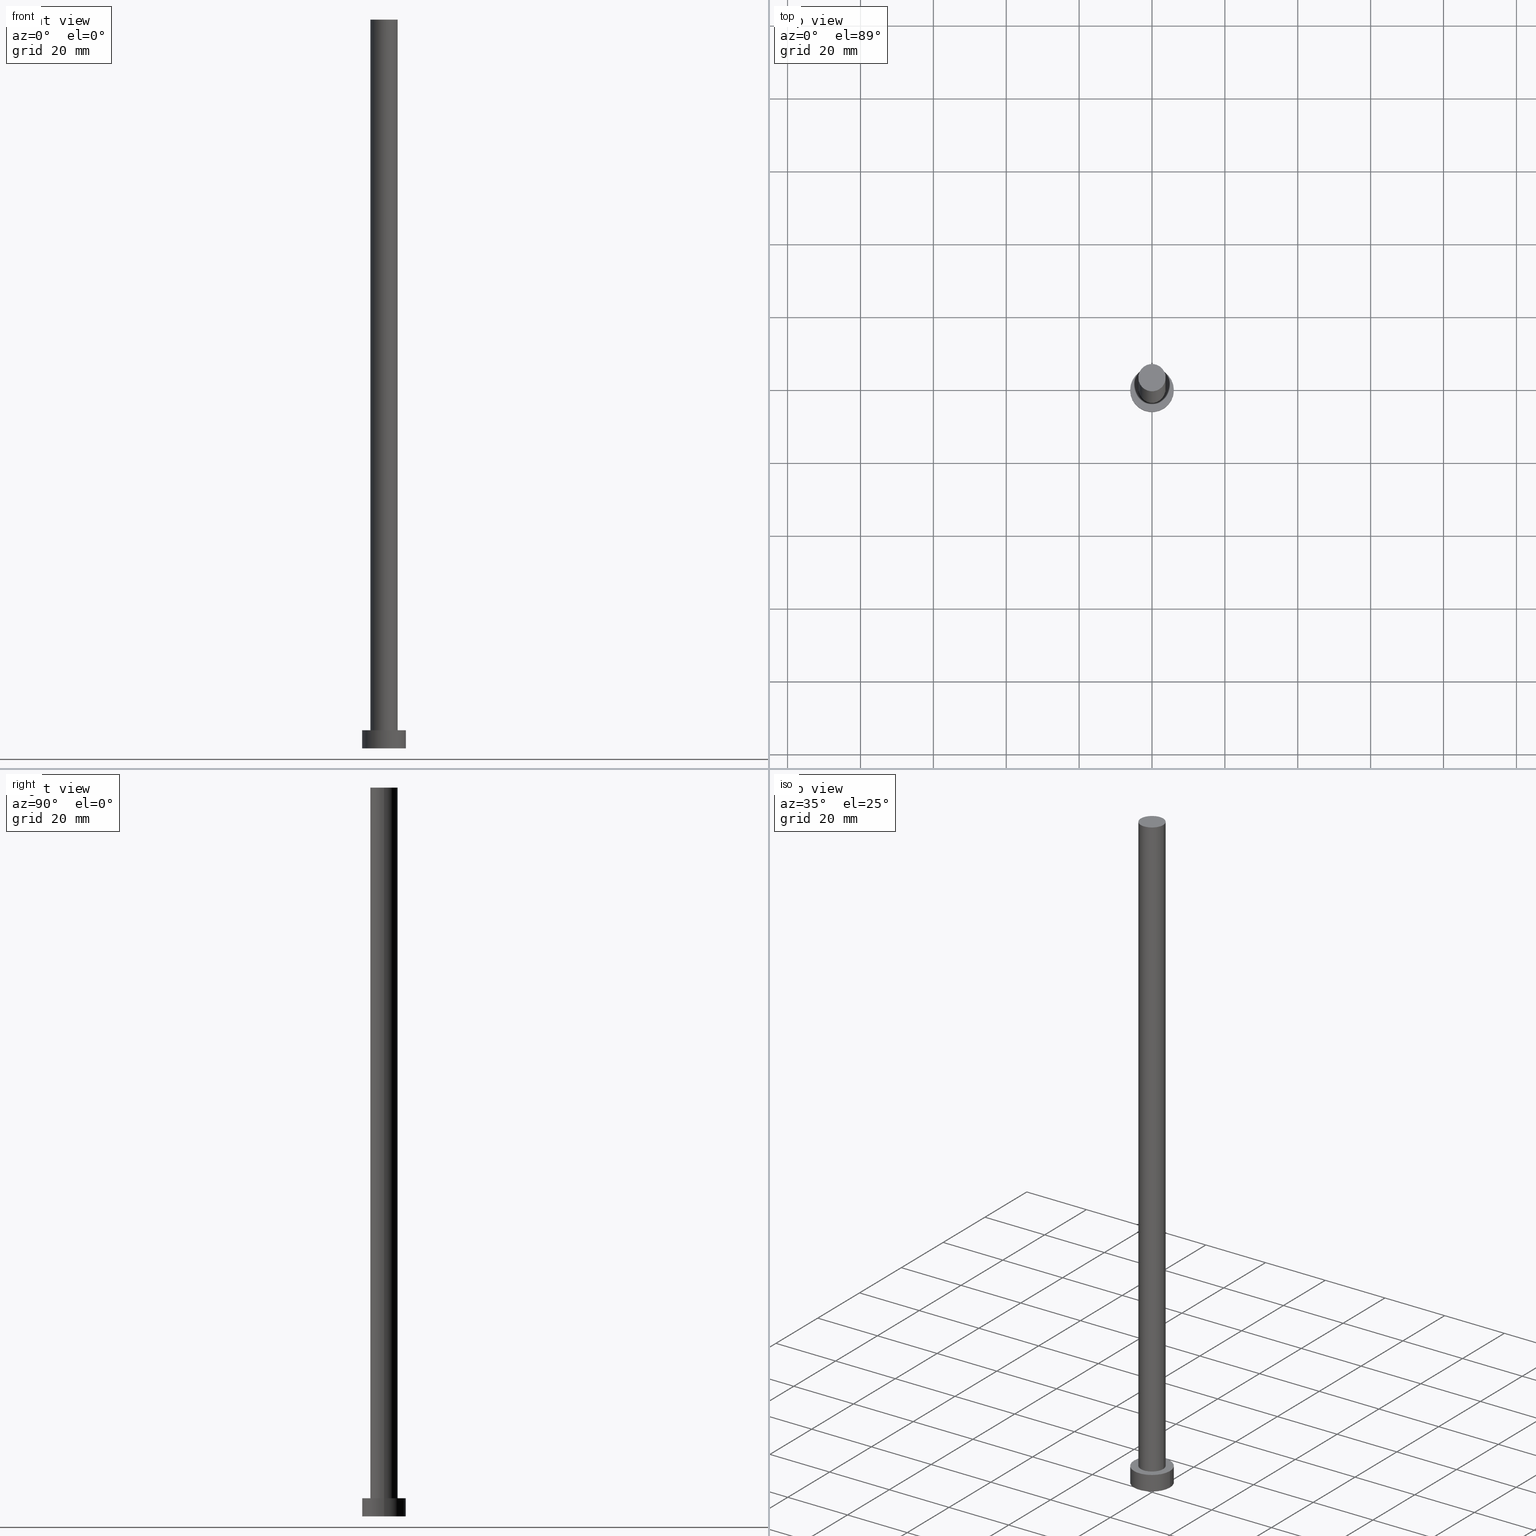
[diagram: canonical four-view strip — front | top / right | iso, engineering-drawing reading convention]
A machine part, canonical four-view strip (front | top / right | iso — engineering-drawing reading convention). The complete STEP part file that produces these views, byte-faithful:
ISO-10303-21;
HEADER;
FILE_DESCRIPTION (( 'STEP AP203' ),
    '1' );
FILE_NAME ('d3c8.STEP',
    '2023-02-13T13:34:40',
    ( '' ),
    ( '' ),
    'SwSTEP 2.0',
    'SolidWorks 2019',
    '' );
FILE_SCHEMA (( 'CONFIG_CONTROL_DESIGN' ));
ENDSEC;

DATA;
#1 = AXIS2_PLACEMENT_3D ( 'NONE', #199, #41, #137 ) ;
#2 = CARTESIAN_POINT ( 'NONE',  ( 6.000000000000000888, 7.347880794884120722E-16, 0.000000000000000000 ) ) ;
#3 = EDGE_CURVE ( 'NONE', #223, #5, #92, .T. ) ;
#4 = CALENDAR_DATE ( 2023, 13, 2 ) ;
#5 = VERTEX_POINT ( 'NONE', #47 ) ;
#6 = PRODUCT_RELATED_PRODUCT_CATEGORY ( 'detail', '', ( #153 ) ) ;
#7 = APPROVAL_DATE_TIME ( #44, #37 ) ;
#8 = DIRECTION ( 'NONE',  ( -0.000000000000000000, -0.000000000000000000, -1.000000000000000000 ) ) ;
#9 = APPROVAL_STATUS ( 'not_yet_approved' ) ;
#10 = ORIENTED_EDGE ( 'NONE', *, *, #175, .T. ) ;
#11 = ORIENTED_EDGE ( 'NONE', *, *, #233, .F. ) ;
#12 = PERSON_AND_ORGANIZATION ( #134, #191 ) ;
#13 = DIRECTION ( 'NONE',  ( 1.000000000000000000, 0.000000000000000000, 0.000000000000000000 ) ) ;
#14 = DIRECTION ( 'NONE',  ( 1.000000000000000000, 0.000000000000000000, 0.000000000000000000 ) ) ;
#15 = CARTESIAN_POINT ( 'NONE',  ( 0.000000000000000000, 0.000000000000000000, 200.0000000000000000 ) ) ;
#16 = CIRCLE ( 'NONE', #49, 3.750000000000000000 ) ;
#17 = CYLINDRICAL_SURFACE ( 'NONE', #108, 3.750000000000000000 ) ;
#18 = AXIS2_PLACEMENT_3D ( 'NONE', #57, #39, #217 ) ;
#19 = DIRECTION ( 'NONE',  ( -1.000000000000000000, 0.000000000000000000, 0.000000000000000000 ) ) ;
#20 = APPROVAL_DATE_TIME ( #24, #118 ) ;
#21 = AXIS2_PLACEMENT_3D ( 'NONE', #224, #125, #142 ) ;
#22 = DIRECTION ( 'NONE',  ( 1.000000000000000000, 0.000000000000000000, 0.000000000000000000 ) ) ;
#23 = EDGE_CURVE ( 'NONE', #59, #77, #97, .T. ) ;
#24 = DATE_AND_TIME ( #155, #221 ) ;
#25 = LINE ( 'NONE', #88, #209 ) ;
#26 = CC_DESIGN_DATE_AND_TIME_ASSIGNMENT ( #186, #115, ( #167 ) ) ;
#27 = CARTESIAN_POINT ( 'NONE',  ( 3.750000000000000000, 4.592425496802573972E-16, 5.000000000000000000 ) ) ;
#28 = DIRECTION ( 'NONE',  ( 0.000000000000000000, 0.000000000000000000, 1.000000000000000000 ) ) ;
#29 = EDGE_CURVE ( 'NONE', #51, #226, #249, .T. ) ;
#30 = DIRECTION ( 'NONE',  ( 1.000000000000000000, 0.000000000000000000, 0.000000000000000000 ) ) ;
#31 = AXIS2_PLACEMENT_3D ( 'NONE', #243, #63, #87 ) ;
#32 = ORIENTED_EDGE ( 'NONE', *, *, #29, .F. ) ;
#33 = LOCAL_TIME ( 14, 34, 40.00000000000000000, #201 ) ;
#34 = CALENDAR_DATE ( 2023, 13, 2 ) ;
#35 = ORIENTED_EDGE ( 'NONE', *, *, #175, .F. ) ;
#36 = APPROVAL_STATUS ( 'not_yet_approved' ) ;
#37 = APPROVAL ( #36, 'NEUR�EN�' ) ;
#38 = UNCERTAINTY_MEASURE_WITH_UNIT (LENGTH_MEASURE( 1.000000000000000082E-05 ), #237, 'distance_accuracy_value', 'NONE');
#39 = DIRECTION ( 'NONE',  ( 0.000000000000000000, 0.000000000000000000, 1.000000000000000000 ) ) ;
#40 = VECTOR ( 'NONE', #109, 1000.000000000000000 ) ;
#41 = DIRECTION ( 'NONE',  ( 0.000000000000000000, 0.000000000000000000, 1.000000000000000000 ) ) ;
#42 = EDGE_CURVE ( 'NONE', #51, #77, #95, .T. ) ;
#43 = ORIENTED_EDGE ( 'NONE', *, *, #198, .F. ) ;
#44 = DATE_AND_TIME ( #34, #181 ) ;
#45 =( GEOMETRIC_REPRESENTATION_CONTEXT ( 3 ) GLOBAL_UNCERTAINTY_ASSIGNED_CONTEXT ( ( #38 ) ) GLOBAL_UNIT_ASSIGNED_CONTEXT ( ( #237, #244, #62 ) ) REPRESENTATION_CONTEXT ( 'NONE', 'WORKASPACE' ) );
#46 = ORIENTED_EDGE ( 'NONE', *, *, #3, .F. ) ;
#47 = CARTESIAN_POINT ( 'NONE',  ( -6.000000000000000888, 0.000000000000000000, 0.000000000000000000 ) ) ;
#48 = EDGE_LOOP ( 'NONE', ( #43, #82, #114, #11 ) ) ;
#49 = AXIS2_PLACEMENT_3D ( 'NONE', #192, #172, #14 ) ;
#50 = ADVANCED_FACE ( 'NONE', ( #78 ), #162, .T. ) ;
#51 = VERTEX_POINT ( 'NONE', #166 ) ;
#52 = MANIFOLD_SOLID_BREP ( 'P�idat vysunut�m3', #179 ) ;
#53 = DESIGN_CONTEXT ( 'detailed design', #101, 'design' ) ;
#54 = VECTOR ( 'NONE', #8, 1000.000000000000000 ) ;
#55 = CC_DESIGN_SECURITY_CLASSIFICATION ( #74, ( #67 ) ) ;
#56 = CARTESIAN_POINT ( 'NONE',  ( 0.000000000000000000, 0.000000000000000000, 5.000000000000000000 ) ) ;
#57 = CARTESIAN_POINT ( 'NONE',  ( 0.000000000000000000, 0.000000000000000000, 0.000000000000000000 ) ) ;
#58 = FACE_OUTER_BOUND ( 'NONE', #61, .T. ) ;
#59 = VERTEX_POINT ( 'NONE', #27 ) ;
#60 = PERSON_AND_ORGANIZATION_ROLE ( 'design_owner' ) ;
#61 = EDGE_LOOP ( 'NONE', ( #145, #183 ) ) ;
#62 =( NAMED_UNIT ( * ) SI_UNIT ( $, .STERADIAN. ) SOLID_ANGLE_UNIT ( ) );
#63 = DIRECTION ( 'NONE',  ( 0.000000000000000000, 0.000000000000000000, 1.000000000000000000 ) ) ;
#64 = EDGE_LOOP ( 'NONE', ( #124, #239 ) ) ;
#65 = CARTESIAN_POINT ( 'NONE',  ( 0.000000000000000000, 0.000000000000000000, 200.0000000000000000 ) ) ;
#66 = APPROVAL_ROLE ( '' ) ;
#67 = PRODUCT_DEFINITION_FORMATION_WITH_SPECIFIED_SOURCE ( 'LIBOVOLN�', '', #153, .NOT_KNOWN. ) ;
#68 = CC_DESIGN_PERSON_AND_ORGANIZATION_ASSIGNMENT ( #184, #240, ( #67 ) ) ;
#69 = CARTESIAN_POINT ( 'NONE',  ( 0.000000000000000000, 0.000000000000000000, 5.000000000000000000 ) ) ;
#70 = PLANE ( 'NONE',  #235 ) ;
#71 = VECTOR ( 'NONE', #234, 1000.000000000000000 ) ;
#72 = LOCAL_TIME ( 14, 34, 40.00000000000000000, #247 ) ;
#73 = CARTESIAN_POINT ( 'NONE',  ( 3.750000000000000000, 4.592425496802573972E-16, 200.0000000000000000 ) ) ;
#74 = SECURITY_CLASSIFICATION ( '', '', #94 ) ;
#75 = CC_DESIGN_PERSON_AND_ORGANIZATION_ASSIGNMENT ( #182, #76, ( #67 ) ) ;
#76 = PERSON_AND_ORGANIZATION_ROLE ( 'creator' ) ;
#77 = VERTEX_POINT ( 'NONE', #86 ) ;
#78 = FACE_OUTER_BOUND ( 'NONE', #64, .T. ) ;
#79 = ADVANCED_FACE ( 'NONE', ( #190 ), #84, .T. ) ;
#80 = APPLICATION_CONTEXT ( 'configuration controlled 3d designs of mechanical parts and assemblies' ) ;
#81 = COORDINATED_UNIVERSAL_TIME_OFFSET ( 1, 0, .AHEAD. ) ;
#82 = ORIENTED_EDGE ( 'NONE', *, *, #144, .T. ) ;
#83 = VERTEX_POINT ( 'NONE', #89 ) ;
#84 = CYLINDRICAL_SURFACE ( 'NONE', #206, 6.000000000000000888 ) ;
#85 = DIRECTION ( 'NONE',  ( -0.000000000000000000, -0.000000000000000000, -1.000000000000000000 ) ) ;
#86 = CARTESIAN_POINT ( 'NONE',  ( -3.750000000000000000, 0.000000000000000000, 5.000000000000000000 ) ) ;
#87 = DIRECTION ( 'NONE',  ( 1.000000000000000000, 0.000000000000000000, -0.000000000000000000 ) ) ;
#88 = CARTESIAN_POINT ( 'NONE',  ( -6.000000000000000888, 0.000000000000000000, 5.000000000000000000 ) ) ;
#89 = CARTESIAN_POINT ( 'NONE',  ( -6.000000000000000888, 0.000000000000000000, 5.000000000000000000 ) ) ;
#90 = EDGE_CURVE ( 'NONE', #77, #59, #16, .T. ) ;
#91 = CC_DESIGN_PERSON_AND_ORGANIZATION_ASSIGNMENT ( #132, #127, ( #74 ) ) ;
#92 = CIRCLE ( 'NONE', #242, 6.000000000000000888 ) ;
#93 = CC_DESIGN_APPROVAL ( #118, ( #74 ) ) ;
#94 = SECURITY_CLASSIFICATION_LEVEL ( 'unclassified' ) ;
#95 = LINE ( 'NONE', #185, #54 ) ;
#96 = DIRECTION ( 'NONE',  ( 0.000000000000000000, 0.000000000000000000, 1.000000000000000000 ) ) ;
#97 = CIRCLE ( 'NONE', #129, 3.750000000000000000 ) ;
#98 = APPLICATION_PROTOCOL_DEFINITION ( 'international standard', 'config_control_design', 1994, #101 ) ;
#99 = ORIENTED_EDGE ( 'NONE', *, *, #90, .F. ) ;
#100 = ORIENTED_EDGE ( 'NONE', *, *, #23, .F. ) ;
#101 = APPLICATION_CONTEXT ( 'configuration controlled 3d designs of mechanical parts and assemblies' ) ;
#102 = DATE_TIME_ROLE ( 'classification_date' ) ;
#103 = CC_DESIGN_APPROVAL ( #37, ( #167 ) ) ;
#104 = DIRECTION ( 'NONE',  ( -0.000000000000000000, -0.000000000000000000, -1.000000000000000000 ) ) ;
#105 = DIRECTION ( 'NONE',  ( -1.000000000000000000, 0.000000000000000000, 0.000000000000000000 ) ) ;
#106 = EDGE_CURVE ( 'NONE', #226, #51, #194, .T. ) ;
#107 = PRODUCT_DEFINITION_SHAPE ( 'NONE', 'NONE',  #167 ) ;
#108 = AXIS2_PLACEMENT_3D ( 'NONE', #112, #231, #105 ) ;
#109 = DIRECTION ( 'NONE',  ( -0.000000000000000000, -0.000000000000000000, -1.000000000000000000 ) ) ;
#110 = CC_DESIGN_APPROVAL ( #158, ( #67 ) ) ;
#111 = SHAPE_DEFINITION_REPRESENTATION ( #107, #250 ) ;
#112 = CARTESIAN_POINT ( 'NONE',  ( 0.000000000000000000, 0.000000000000000000, 200.0000000000000000 ) ) ;
#113 = EDGE_CURVE ( 'NONE', #226, #59, #148, .T. ) ;
#114 = ORIENTED_EDGE ( 'NONE', *, *, #3, .T. ) ;
#115 = DATE_TIME_ROLE ( 'creation_date' ) ;
#116 = AXIS2_PLACEMENT_3D ( 'NONE', #56, #133, #22 ) ;
#117 = EDGE_LOOP ( 'NONE', ( #245, #219, #141, #10 ) ) ;
#118 = APPROVAL ( #218, 'NEUR�EN�' ) ;
#119 = PERSON_AND_ORGANIZATION_ROLE ( 'creator' ) ;
#120 = ORIENTED_EDGE ( 'NONE', *, *, #113, .T. ) ;
#121 = MECHANICAL_CONTEXT ( 'NONE', #80, 'mechanical' ) ;
#122 = ORIENTED_EDGE ( 'NONE', *, *, #90, .T. ) ;
#123 = APPLICATION_PROTOCOL_DEFINITION ( 'international standard', 'config_control_design', 1994, #80 ) ;
#124 = ORIENTED_EDGE ( 'NONE', *, *, #29, .T. ) ;
#125 = DIRECTION ( 'NONE',  ( 0.000000000000000000, 0.000000000000000000, 1.000000000000000000 ) ) ;
#126 = FACE_OUTER_BOUND ( 'NONE', #165, .T. ) ;
#127 = PERSON_AND_ORGANIZATION_ROLE ( 'classification_officer' ) ;
#128 = CARTESIAN_POINT ( 'NONE',  ( 0.000000000000000000, 0.000000000000000000, 5.000000000000000000 ) ) ;
#129 = AXIS2_PLACEMENT_3D ( 'NONE', #220, #28, #13 ) ;
#130 = CC_DESIGN_PERSON_AND_ORGANIZATION_ASSIGNMENT ( #222, #119, ( #167 ) ) ;
#131 = DIRECTION ( 'NONE',  ( -1.000000000000000000, 0.000000000000000000, 0.000000000000000000 ) ) ;
#132 = PERSON_AND_ORGANIZATION ( #134, #191 ) ;
#133 = DIRECTION ( 'NONE',  ( 0.000000000000000000, 0.000000000000000000, 1.000000000000000000 ) ) ;
#134 = PERSON ( 'NEUR�EN�', 'NEUR�EN�', 'NEUR�EN�', ('NEUR�EN�'), ('NEUR�EN�'), ('NEUR�EN�') ) ;
#135 = DATE_AND_TIME ( #152, #238 ) ;
#136 = AXIS2_PLACEMENT_3D ( 'NONE', #65, #96, #189 ) ;
#137 = DIRECTION ( 'NONE',  ( 1.000000000000000000, 0.000000000000000000, -0.000000000000000000 ) ) ;
#138 = DIRECTION ( 'NONE',  ( 0.000000000000000000, 0.000000000000000000, 1.000000000000000000 ) ) ;
#139 = DIRECTION ( 'NONE',  ( -0.000000000000000000, -0.000000000000000000, -1.000000000000000000 ) ) ;
#140 = ADVANCED_FACE ( 'NONE', ( #214 ), #195, .T. ) ;
#141 = ORIENTED_EDGE ( 'NONE', *, *, #233, .T. ) ;
#142 = DIRECTION ( 'NONE',  ( 1.000000000000000000, 0.000000000000000000, 0.000000000000000000 ) ) ;
#143 = APPROVAL_PERSON_ORGANIZATION ( #187, #37, #163 ) ;
#144 = EDGE_CURVE ( 'NONE', #211, #223, #213, .T. ) ;
#145 = ORIENTED_EDGE ( 'NONE', *, *, #230, .T. ) ;
#146 = ORIENTED_EDGE ( 'NONE', *, *, #113, .F. ) ;
#147 = AXIS2_PLACEMENT_3D ( 'NONE', #254, #169, #215 ) ;
#148 = LINE ( 'NONE', #73, #40 ) ;
#149 = CARTESIAN_POINT ( 'NONE',  ( 0.000000000000000000, 0.000000000000000000, 0.000000000000000000 ) ) ;
#150 = ADVANCED_FACE ( 'NONE', ( #126 ), #168, .T. ) ;
#151 = FACE_OUTER_BOUND ( 'NONE', #225, .T. ) ;
#152 = CALENDAR_DATE ( 2023, 13, 2 ) ;
#153 = PRODUCT ( 'd3c8', 'd3c8', '', ( #121 ) ) ;
#154 = DIRECTION ( 'NONE',  ( -0.000000000000000000, -0.000000000000000000, -1.000000000000000000 ) ) ;
#155 = CALENDAR_DATE ( 2023, 13, 2 ) ;
#156 = AXIS2_PLACEMENT_3D ( 'NONE', #160, #138, #193 ) ;
#157 = DIRECTION ( 'NONE',  ( 1.000000000000000000, 0.000000000000000000, -0.000000000000000000 ) ) ;
#158 = APPROVAL ( #9, 'NEUR�EN�' ) ;
#159 = ADVANCED_FACE ( 'NONE', ( #248 ), #70, .F. ) ;
#160 = CARTESIAN_POINT ( 'NONE',  ( 0.000000000000000000, 0.000000000000000000, 5.000000000000000000 ) ) ;
#161 = ORIENTED_EDGE ( 'NONE', *, *, #42, .T. ) ;
#162 = PLANE ( 'NONE',  #31 ) ;
#163 = APPROVAL_ROLE ( '' ) ;
#164 = EDGE_LOOP ( 'NONE', ( #35, #46 ) ) ;
#165 = EDGE_LOOP ( 'NONE', ( #146, #32, #161, #122 ) ) ;
#166 = CARTESIAN_POINT ( 'NONE',  ( -3.750000000000000000, 0.000000000000000000, 200.0000000000000000 ) ) ;
#167 = PRODUCT_DEFINITION ( 'NEZN�M�', '', #67, #53 ) ;
#168 = CYLINDRICAL_SURFACE ( 'NONE', #208, 3.750000000000000000 ) ;
#169 = DIRECTION ( 'NONE',  ( 0.000000000000000000, 0.000000000000000000, 1.000000000000000000 ) ) ;
#170 = CIRCLE ( 'NONE', #18, 6.000000000000000888 ) ;
#171 = CC_DESIGN_PERSON_AND_ORGANIZATION_ASSIGNMENT ( #210, #60, ( #153 ) ) ;
#172 = DIRECTION ( 'NONE',  ( 0.000000000000000000, 0.000000000000000000, 1.000000000000000000 ) ) ;
#173 = COORDINATED_UNIVERSAL_TIME_OFFSET ( 1, 0, .AHEAD. ) ;
#174 = PERSON_AND_ORGANIZATION ( #134, #191 ) ;
#175 = EDGE_CURVE ( 'NONE', #5, #223, #170, .T. ) ;
#176 = ADVANCED_FACE ( 'NONE', ( #151 ), #17, .T. ) ;
#177 = CARTESIAN_POINT ( 'NONE',  ( 6.000000000000000888, 7.347880794884120722E-16, 5.000000000000000000 ) ) ;
#178 = CARTESIAN_POINT ( 'NONE',  ( 3.750000000000000000, 4.592425496802573972E-16, 200.0000000000000000 ) ) ;
#179 = CLOSED_SHELL ( 'NONE', ( #176, #79, #140, #207, #159, #150, #50 ) ) ;
#180 = PLANE ( 'NONE',  #1 ) ;
#181 = LOCAL_TIME ( 14, 34, 40.00000000000000000, #81 ) ;
#182 = PERSON_AND_ORGANIZATION ( #134, #191 ) ;
#183 = ORIENTED_EDGE ( 'NONE', *, *, #198, .T. ) ;
#184 = PERSON_AND_ORGANIZATION ( #134, #191 ) ;
#185 = CARTESIAN_POINT ( 'NONE',  ( -3.750000000000000000, 0.000000000000000000, 200.0000000000000000 ) ) ;
#186 = DATE_AND_TIME ( #203, #72 ) ;
#187 = PERSON_AND_ORGANIZATION ( #134, #191 ) ;
#188 = EDGE_LOOP ( 'NONE', ( #99, #100 ) ) ;
#189 = DIRECTION ( 'NONE',  ( 1.000000000000000000, 0.000000000000000000, 0.000000000000000000 ) ) ;
#190 = FACE_OUTER_BOUND ( 'NONE', #48, .T. ) ;
#191 = ORGANIZATION ( 'NEUR�EN�', 'NEUR�EN�', '' ) ;
#192 = CARTESIAN_POINT ( 'NONE',  ( 0.000000000000000000, 0.000000000000000000, 5.000000000000000000 ) ) ;
#193 = DIRECTION ( 'NONE',  ( 1.000000000000000000, 0.000000000000000000, 0.000000000000000000 ) ) ;
#194 = CIRCLE ( 'NONE', #147, 3.750000000000000000 ) ;
#195 = CYLINDRICAL_SURFACE ( 'NONE', #252, 6.000000000000000888 ) ;
#196 = APPROVAL_ROLE ( '' ) ;
#197 = FACE_BOUND ( 'NONE', #188, .T. ) ;
#198 = EDGE_CURVE ( 'NONE', #211, #83, #227, .T. ) ;
#199 = CARTESIAN_POINT ( 'NONE',  ( 0.000000000000000000, 0.000000000000000000, 5.000000000000000000 ) ) ;
#200 = ORIENTED_EDGE ( 'NONE', *, *, #106, .F. ) ;
#201 = COORDINATED_UNIVERSAL_TIME_OFFSET ( 1, 0, .AHEAD. ) ;
#202 = CARTESIAN_POINT ( 'NONE',  ( 0.000000000000000000, 0.000000000000000000, 0.000000000000000000 ) ) ;
#203 = CALENDAR_DATE ( 2023, 13, 2 ) ;
#204 = ORIENTED_EDGE ( 'NONE', *, *, #42, .F. ) ;
#205 = CC_DESIGN_DATE_AND_TIME_ASSIGNMENT ( #135, #102, ( #74 ) ) ;
#206 = AXIS2_PLACEMENT_3D ( 'NONE', #69, #104, #232 ) ;
#207 = ADVANCED_FACE ( 'NONE', ( #197, #58 ), #180, .T. ) ;
#208 = AXIS2_PLACEMENT_3D ( 'NONE', #15, #85, #131 ) ;
#209 = VECTOR ( 'NONE', #139, 1000.000000000000000 ) ;
#210 = PERSON_AND_ORGANIZATION ( #134, #191 ) ;
#211 = VERTEX_POINT ( 'NONE', #177 ) ;
#212 = APPROVAL_DATE_TIME ( #229, #158 ) ;
#213 = LINE ( 'NONE', #253, #71 ) ;
#214 = FACE_OUTER_BOUND ( 'NONE', #117, .T. ) ;
#215 = DIRECTION ( 'NONE',  ( 1.000000000000000000, 0.000000000000000000, 0.000000000000000000 ) ) ;
#216 = APPROVAL_PERSON_ORGANIZATION ( #12, #158, #66 ) ;
#217 = DIRECTION ( 'NONE',  ( 1.000000000000000000, 0.000000000000000000, 0.000000000000000000 ) ) ;
#218 = APPROVAL_STATUS ( 'not_yet_approved' ) ;
#219 = ORIENTED_EDGE ( 'NONE', *, *, #230, .F. ) ;
#220 = CARTESIAN_POINT ( 'NONE',  ( 0.000000000000000000, 0.000000000000000000, 5.000000000000000000 ) ) ;
#221 = LOCAL_TIME ( 14, 34, 40.00000000000000000, #255 ) ;
#222 = PERSON_AND_ORGANIZATION ( #134, #191 ) ;
#223 = VERTEX_POINT ( 'NONE', #2 ) ;
#224 = CARTESIAN_POINT ( 'NONE',  ( 0.000000000000000000, 0.000000000000000000, 0.000000000000000000 ) ) ;
#225 = EDGE_LOOP ( 'NONE', ( #200, #120, #241, #204 ) ) ;
#226 = VERTEX_POINT ( 'NONE', #178 ) ;
#227 = CIRCLE ( 'NONE', #116, 6.000000000000000888 ) ;
#228 = CIRCLE ( 'NONE', #156, 6.000000000000000888 ) ;
#229 = DATE_AND_TIME ( #4, #33 ) ;
#230 = EDGE_CURVE ( 'NONE', #83, #211, #228, .T. ) ;
#231 = DIRECTION ( 'NONE',  ( -0.000000000000000000, -0.000000000000000000, -1.000000000000000000 ) ) ;
#232 = DIRECTION ( 'NONE',  ( -1.000000000000000000, 0.000000000000000000, 0.000000000000000000 ) ) ;
#233 = EDGE_CURVE ( 'NONE', #83, #5, #25, .T. ) ;
#234 = DIRECTION ( 'NONE',  ( -0.000000000000000000, -0.000000000000000000, -1.000000000000000000 ) ) ;
#235 = AXIS2_PLACEMENT_3D ( 'NONE', #149, #251, #157 ) ;
#236 = APPROVAL_PERSON_ORGANIZATION ( #174, #118, #196 ) ;
#237 =( LENGTH_UNIT ( ) NAMED_UNIT ( * ) SI_UNIT ( .MILLI., .METRE. ) );
#238 = LOCAL_TIME ( 14, 34, 40.00000000000000000, #173 ) ;
#239 = ORIENTED_EDGE ( 'NONE', *, *, #106, .T. ) ;
#240 = PERSON_AND_ORGANIZATION_ROLE ( 'design_supplier' ) ;
#241 = ORIENTED_EDGE ( 'NONE', *, *, #23, .T. ) ;
#242 = AXIS2_PLACEMENT_3D ( 'NONE', #202, #246, #30 ) ;
#243 = CARTESIAN_POINT ( 'NONE',  ( 0.000000000000000000, 0.000000000000000000, 200.0000000000000000 ) ) ;
#244 =( NAMED_UNIT ( * ) PLANE_ANGLE_UNIT ( ) SI_UNIT ( $, .RADIAN. ) );
#245 = ORIENTED_EDGE ( 'NONE', *, *, #144, .F. ) ;
#246 = DIRECTION ( 'NONE',  ( 0.000000000000000000, 0.000000000000000000, 1.000000000000000000 ) ) ;
#247 = COORDINATED_UNIVERSAL_TIME_OFFSET ( 1, 0, .AHEAD. ) ;
#248 = FACE_OUTER_BOUND ( 'NONE', #164, .T. ) ;
#249 = CIRCLE ( 'NONE', #136, 3.750000000000000000 ) ;
#250 = ADVANCED_BREP_SHAPE_REPRESENTATION ( 'd3c8', ( #52, #21 ), #45 ) ;
#251 = DIRECTION ( 'NONE',  ( 0.000000000000000000, 0.000000000000000000, 1.000000000000000000 ) ) ;
#252 = AXIS2_PLACEMENT_3D ( 'NONE', #128, #154, #19 ) ;
#253 = CARTESIAN_POINT ( 'NONE',  ( 6.000000000000000888, 7.347880794884120722E-16, 5.000000000000000000 ) ) ;
#254 = CARTESIAN_POINT ( 'NONE',  ( 0.000000000000000000, 0.000000000000000000, 200.0000000000000000 ) ) ;
#255 = COORDINATED_UNIVERSAL_TIME_OFFSET ( 1, 0, .AHEAD. ) ;
ENDSEC;
END-ISO-10303-21;
